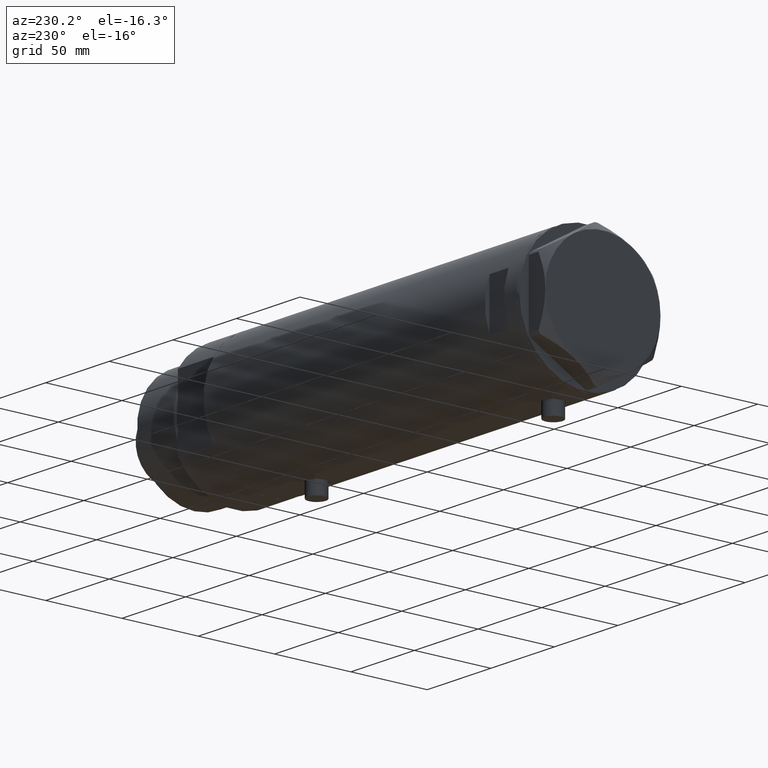
[diagram: clean part render]
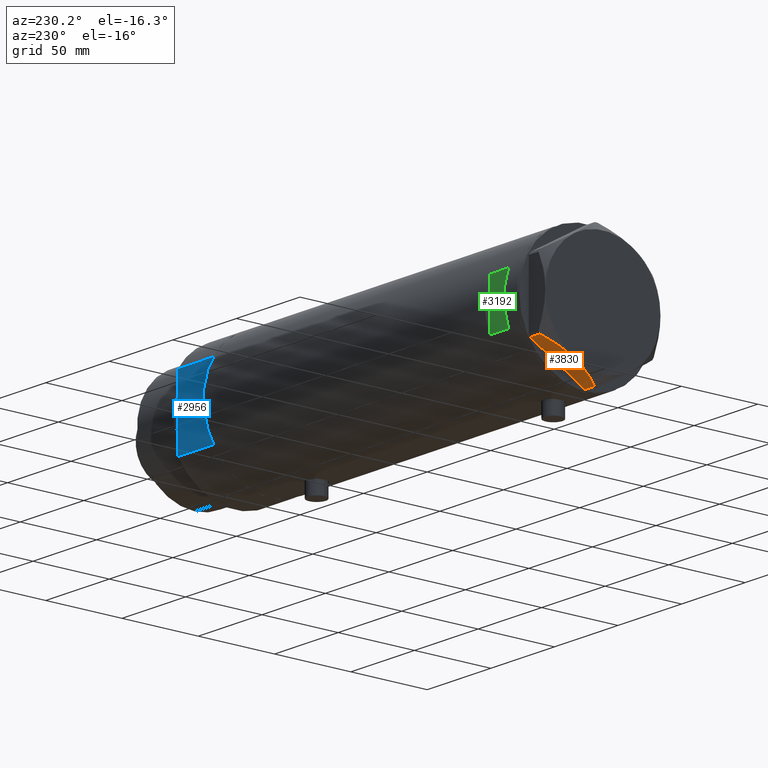
[diagram: same view with three faces highlighted in distinct colors, each labeled with its STEP entity id]
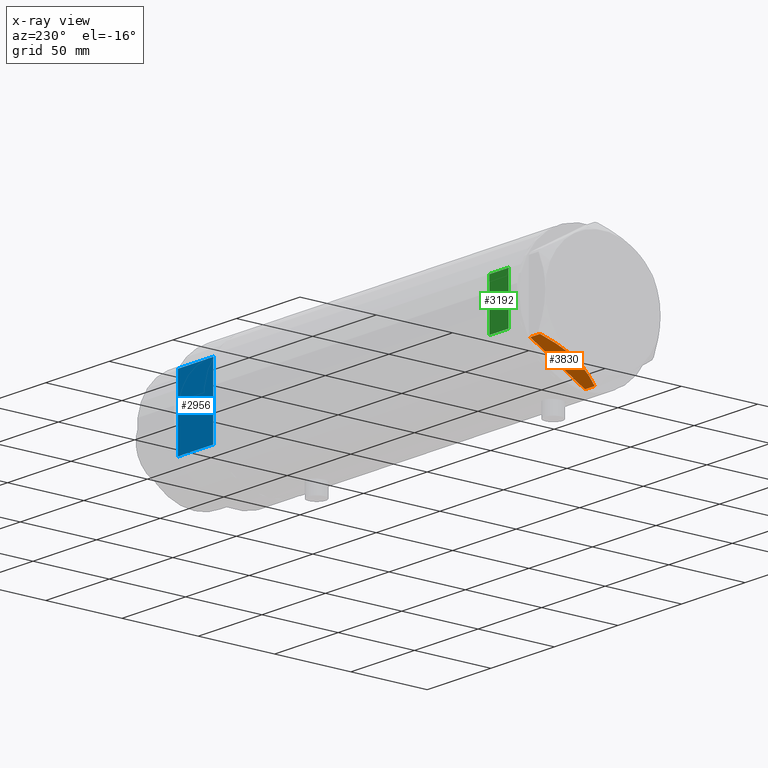
[diagram: x-ray of the same camera — body ghosted, the three highlighted faces saturated]
A machine part, auxiliary view with three faces highlighted in distinct colors.
The next image is the same camera in x-ray (body ghosted, the three faces saturated) — at least one of them is partly hidden behind the body in this view.
Their STEP definitions:

[orange] entity #3830 — the highlighted planar face has unit normal (0, -0.5, 0.866).
#1 = VERTEX_POINT ( 'NONE', #1885 ) ;
#27 = B_SPLINE_CURVE_WITH_KNOTS ( 'NONE', 3,
 ( #899, #2302, #2356, #192, #2380, #2015, #1996, #466, #1311, #3280 ),
 .UNSPECIFIED., .F., .F.,
 ( 4, 2, 2, 2, 4 ),
 ( 0.001231023567492484571, 0.01191187151549577897, 0.01725229548949741912, 0.01992250747649823919, 0.02259271946349905927 ),
 .UNSPECIFIED. ) ;
#192 = CARTESIAN_POINT ( 'NONE',  ( 26.62598697109948631, 28.21742457861299158, 11.98878493998158490 ) ) ;
#466 = CARTESIAN_POINT ( 'NONE',  ( 20.44120046918717293, 31.78821273037242534, 12.96759879420492290 ) ) ;
#571 = ORIENTED_EDGE ( 'NONE', *, *, #2255, .T. ) ;
#643 = ORIENTED_EDGE ( 'NONE', *, *, #4375, .F. ) ;
#652 = VECTOR ( 'NONE', #3900, 1000.000000000000000 ) ;
#899 = CARTESIAN_POINT ( 'NONE',  ( 36.78005154776156616, 22.35497266190829180, 7.709124142616896158 ) ) ;
#1000 = ORIENTED_EDGE ( 'NONE', *, *, #2433, .F. ) ;
#1044 = CARTESIAN_POINT ( 'NONE',  ( 8.949419886524690781, 38.42299534324072141, 11.30742055474510366 ) ) ;
#1070 = LINE ( 'NONE', #1781, #1899 ) ;
#1092 = EDGE_CURVE ( 'NONE', #3863, #1, #3616, .T. ) ;
#1151 = CARTESIAN_POINT ( 'NONE',  ( 0.9699484522385712904, 43.02994532381674020, 13.00000000000000000 ) ) ;
#1311 = CARTESIAN_POINT ( 'NONE',  ( 19.65653997226999294, 32.24123667949002936, 13.00000000000000355 ) ) ;
#1412 = CARTESIAN_POINT ( 'NONE',  ( 8.199247025945881617, 38.85610784623463587, 11.04644118613097170 ) ) ;
#1539 = AXIS2_PLACEMENT_3D ( 'NONE', #4412, #2636, #3929 ) ;
#1681 = CARTESIAN_POINT ( 'NONE',  ( 5.984301592052704066, 40.13490718873321583, 10.17879673963510001 ) ) ;
#1729 = CARTESIAN_POINT ( 'NONE',  ( 11.20965750620489843, 37.11804654508583212, 12.01242981158388723 ) ) ;
#1781 = CARTESIAN_POINT ( 'NONE',  ( 36.78005154776142405, 22.35497266190837706, 13.00000000000000000 ) ) ;
#1885 = CARTESIAN_POINT ( 'NONE',  ( 0.9699484522410141141, 43.02994532381532622, 7.709124142618329678 ) ) ;
#1899 = VECTOR ( 'NONE', #4234, 1000.000000000000000 ) ;
#1996 = CARTESIAN_POINT ( 'NONE',  ( 22.01686507582220642, 30.87850234557911833, 12.83692902789790224 ) ) ;
#2015 = CARTESIAN_POINT ( 'NONE',  ( 22.79667224021352112, 30.42828046930179298, 12.73960743196720458 ) ) ;
#2021 = CARTESIAN_POINT ( 'NONE',  ( 3.804046002726260589, 41.39367834013302883, 9.210778219601426287 ) ) ;
#2119 = CARTESIAN_POINT ( 'NONE',  ( 0.9699484522410141141, 43.02994532381532622, 7.709124142618329678 ) ) ;
#2255 = EDGE_CURVE ( 'NONE', #4390, #3109, #1070, .T. ) ;
#2302 = CARTESIAN_POINT ( 'NONE',  ( 33.96695484073207894, 23.97911480296822262, 9.269459228581801824 ) ) ;
#2307 = ORIENTED_EDGE ( 'NONE', *, *, #3776, .T. ) ;
#2326 = LINE ( 'NONE', #3709, #2804 ) ;
#2356 = CARTESIAN_POINT ( 'NONE',  ( 31.09047021924040877, 25.63985397350625206, 10.58681170757598800 ) ) ;
#2380 = CARTESIAN_POINT ( 'NONE',  ( 25.11263918036255305, 29.09115633297248849, 12.35956205105863859 ) ) ;
#2389 = CARTESIAN_POINT ( 'NONE',  ( 15.78316139395979611, 34.47753284435075471, 12.87183830165163556 ) ) ;
#2402 = ORIENTED_EDGE ( 'NONE', *, *, #1092, .T. ) ;
#2433 = EDGE_CURVE ( 'NONE', #4390, #3313, #27, .T. ) ;
#2464 = CARTESIAN_POINT ( 'NONE',  ( 6.717640657182761821, 39.71151368207312515, 10.48240969891332064 ) ) ;
#2535 = PLANE ( 'NONE',  #1539 ) ;
#2636 = DIRECTION ( 'NONE',  ( -0.5000000000000000000, -0.8660254037844387076, 0.000000000000000000 ) ) ;
#2699 = CARTESIAN_POINT ( 'NONE',  ( 36.78005154776142405, 22.35497266190837706, 0.000000000000000000 ) ) ;
#2804 = VECTOR ( 'NONE', #2880, 1000.000000000000227 ) ;
#2880 = DIRECTION ( 'NONE',  ( -0.8660254037844385966, 0.5000000000000000000, 0.000000000000000000 ) ) ;
#3025 = FACE_OUTER_BOUND ( 'NONE', #4317, .T. ) ;
#3086 = CARTESIAN_POINT ( 'NONE',  ( 18.87500000000000000, 32.69245899286255508, 13.00000000000000000 ) ) ;
#3109 = VERTEX_POINT ( 'NONE', #2699 ) ;
#3239 = CARTESIAN_POINT ( 'NONE',  ( 0.9699484522385850571, 43.02994532381674020, 0.000000000000000000 ) ) ;
#3263 = B_SPLINE_CURVE_WITH_KNOTS ( 'NONE', 3,
 ( #3829, #3465, #2389, #4522, #1729, #1044, #1412, #2464, #1681, #2021, #3785, #2119 ),
 .UNSPECIFIED., .F., .F.,
 ( 4, 2, 2, 2, 2, 4 ),
 ( 0.02259271946349905927, 0.02789559809390696268, 0.03319847672431486263, 0.03584991603951881434, 0.03850135535472275911, 0.04380423398513066252 ),
 .UNSPECIFIED. ) ;
#3280 = CARTESIAN_POINT ( 'NONE',  ( 18.87500000000000000, 32.69245899286255508, 13.00000000000000000 ) ) ;
#3313 = VERTEX_POINT ( 'NONE', #3086 ) ;
#3465 = CARTESIAN_POINT ( 'NONE',  ( 17.32290914057161046, 33.58855906836029703, 12.99999999999999822 ) ) ;
#3616 = LINE ( 'NONE', #1151, #652 ) ;
#3709 = CARTESIAN_POINT ( 'NONE',  ( 37.75000000000000000, 21.79497266190837124, 0.000000000000000000 ) ) ;
#3776 = EDGE_CURVE ( 'NONE', #3109, #3863, #2326, .T. ) ;
#3785 = CARTESIAN_POINT ( 'NONE',  ( 2.376799045725944914, 42.21769975495722349, 8.489459328479338041 ) ) ;
#3829 = CARTESIAN_POINT ( 'NONE',  ( 18.87500000000000000, 32.69245899286255508, 13.00000000000000000 ) ) ;
#3830 = ADVANCED_FACE ( 'NONE', ( #3025 ), #2535, .F. ) ;
#3863 = VERTEX_POINT ( 'NONE', #3239 ) ;
#3900 = DIRECTION ( 'NONE',  ( 0.000000000000000000, 0.000000000000000000, 1.000000000000000000 ) ) ;
#3929 = DIRECTION ( 'NONE',  ( 0.8660254037844385966, -0.4999999999999999445, 0.000000000000000000 ) ) ;
#4160 = CARTESIAN_POINT ( 'NONE',  ( 36.78005154776156616, 22.35497266190829180, 7.709124142616896158 ) ) ;
#4234 = DIRECTION ( 'NONE',  ( 0.000000000000000000, 0.000000000000000000, -1.000000000000000000 ) ) ;
#4317 = EDGE_LOOP ( 'NONE', ( #1000, #571, #2307, #2402, #643 ) ) ;
#4375 = EDGE_CURVE ( 'NONE', #3313, #1, #3263, .T. ) ;
#4390 = VERTEX_POINT ( 'NONE', #4160 ) ;
#4412 = CARTESIAN_POINT ( 'NONE',  ( 37.75000000000000000, 21.79497266190837124, 13.00000000000000000 ) ) ;
#4522 = CARTESIAN_POINT ( 'NONE',  ( 12.72654504259190666, 36.24227111762240128, 12.37795492145974308 ) ) ;

[blue] entity #2956 — the highlighted planar face has unit normal (0, -1, -0).
#24 = DIRECTION ( 'NONE',  ( -0.000000000000000000, -0.000000000000000000, 1.000000000000000000 ) ) ;
#25 = EDGE_CURVE ( 'NONE', #4045, #478, #204, .T. ) ;
#35 = PLANE ( 'NONE',  #1903 ) ;
#36 = ORIENTED_EDGE ( 'NONE', *, *, #25, .T. ) ;
#39 = ORIENTED_EDGE ( 'NONE', *, *, #227, .F. ) ;
#204 = LINE ( 'NONE', #3035, #1011 ) ;
#227 = EDGE_CURVE ( 'NONE', #2398, #478, #1514, .T. ) ;
#252 = DIRECTION ( 'NONE',  ( 1.000000000000000000, 0.000000000000000000, 0.000000000000000000 ) ) ;
#380 = CARTESIAN_POINT ( 'NONE',  ( -23.01629857296780557, 37.50000000000000000, 27.89999999999999858 ) ) ;
#390 = CARTESIAN_POINT ( 'NONE',  ( -23.01629857296780557, 37.50000000000000000, 0.000000000000000000 ) ) ;
#438 = DIRECTION ( 'NONE',  ( 1.000000000000000000, 0.000000000000000000, 0.000000000000000000 ) ) ;
#451 = EDGE_CURVE ( 'NONE', #1082, #4045, #2181, .T. ) ;
#478 = VERTEX_POINT ( 'NONE', #1222 ) ;
#489 = VECTOR ( 'NONE', #438, 1000.000000000000000 ) ;
#798 = DIRECTION ( 'NONE',  ( 0.000000000000000000, -0.000000000000000000, -1.000000000000000000 ) ) ;
#819 = VERTEX_POINT ( 'NONE', #4043 ) ;
#1011 = VECTOR ( 'NONE', #1984, 1000.000000000000000 ) ;
#1058 = DIRECTION ( 'NONE',  ( 1.000000000000000000, 0.000000000000000000, 0.000000000000000000 ) ) ;
#1082 = VERTEX_POINT ( 'NONE', #380 ) ;
#1222 = CARTESIAN_POINT ( 'NONE',  ( 23.01629857296780557, 37.50000000000000000, 27.89999999999999858 ) ) ;
#1514 = LINE ( 'NONE', #4245, #4380 ) ;
#1519 = CARTESIAN_POINT ( 'NONE',  ( -23.01629857296780557, 37.50000000000000000, 0.000000000000000000 ) ) ;
#1648 = ORIENTED_EDGE ( 'NONE', *, *, #2157, .F. ) ;
#1786 = DIRECTION ( 'NONE',  ( 0.000000000000000000, -1.000000000000000000, 0.000000000000000000 ) ) ;
#1792 = LINE ( 'NONE', #1519, #2278 ) ;
#1841 = ORIENTED_EDGE ( 'NONE', *, *, #451, .T. ) ;
#1859 = CARTESIAN_POINT ( 'NONE',  ( -23.01629857296780557, 37.50000000000000000, 0.000000000000000000 ) ) ;
#1903 = AXIS2_PLACEMENT_3D ( 'NONE', #390, #1786, #798 ) ;
#1984 = DIRECTION ( 'NONE',  ( 1.000000000000000000, 0.000000000000000000, 0.000000000000000000 ) ) ;
#2073 = CARTESIAN_POINT ( 'NONE',  ( -23.01629857296780557, 37.50000000000000000, 0.000000000000000000 ) ) ;
#2157 = EDGE_CURVE ( 'NONE', #819, #4105, #4527, .T. ) ;
#2181 = LINE ( 'NONE', #3590, #489 ) ;
#2185 = EDGE_LOOP ( 'NONE', ( #1841, #36, #39, #4330, #1648, #3050, #2960 ) ) ;
#2278 = VECTOR ( 'NONE', #24, 1000.000000000000000 ) ;
#2350 = CARTESIAN_POINT ( 'NONE',  ( -23.01629857296780557, 37.50000000000000000, 0.000000000000000000 ) ) ;
#2398 = VERTEX_POINT ( 'NONE', #2668 ) ;
#2589 = DIRECTION ( 'NONE',  ( -0.000000000000000000, -0.000000000000000000, 1.000000000000000000 ) ) ;
#2632 = CARTESIAN_POINT ( 'NONE',  ( 0.000000000000000000, 37.50000000000000000, 27.89999999999999858 ) ) ;
#2668 = CARTESIAN_POINT ( 'NONE',  ( 23.01629857296780557, 37.50000000000000000, 0.000000000000000000 ) ) ;
#2731 = EDGE_CURVE ( 'NONE', #4476, #819, #3044, .T. ) ;
#2821 = LINE ( 'NONE', #4200, #3299 ) ;
#2914 = EDGE_CURVE ( 'NONE', #4105, #2398, #2821, .T. ) ;
#2956 = ADVANCED_FACE ( 'NONE', ( #4285 ), #35, .F. ) ;
#2960 = ORIENTED_EDGE ( 'NONE', *, *, #4507, .T. ) ;
#3035 = CARTESIAN_POINT ( 'NONE',  ( -23.01629857296780557, 37.50000000000000000, 27.89999999999999858 ) ) ;
#3044 = LINE ( 'NONE', #2350, #4100 ) ;
#3050 = ORIENTED_EDGE ( 'NONE', *, *, #2731, .F. ) ;
#3299 = VECTOR ( 'NONE', #1058, 1000.000000000000000 ) ;
#3590 = CARTESIAN_POINT ( 'NONE',  ( -23.01629857296780557, 37.50000000000000000, 27.89999999999999858 ) ) ;
#3775 = DIRECTION ( 'NONE',  ( 1.000000000000000000, 0.000000000000000000, 0.000000000000000000 ) ) ;
#3820 = VECTOR ( 'NONE', #252, 1000.000000000000000 ) ;
#3976 = CARTESIAN_POINT ( 'NONE',  ( 13.91941090707505957, 37.50000000000000000, 0.000000000000000000 ) ) ;
#4043 = CARTESIAN_POINT ( 'NONE',  ( -13.91941090707505957, 37.50000000000000000, 0.000000000000000000 ) ) ;
#4045 = VERTEX_POINT ( 'NONE', #2632 ) ;
#4100 = VECTOR ( 'NONE', #3775, 1000.000000000000000 ) ;
#4105 = VERTEX_POINT ( 'NONE', #3976 ) ;
#4200 = CARTESIAN_POINT ( 'NONE',  ( -23.01629857296780557, 37.50000000000000000, 0.000000000000000000 ) ) ;
#4245 = CARTESIAN_POINT ( 'NONE',  ( 23.01629857296780557, 37.50000000000000000, 0.000000000000000000 ) ) ;
#4285 = FACE_OUTER_BOUND ( 'NONE', #2185, .T. ) ;
#4330 = ORIENTED_EDGE ( 'NONE', *, *, #2914, .F. ) ;
#4380 = VECTOR ( 'NONE', #2589, 1000.000000000000000 ) ;
#4476 = VERTEX_POINT ( 'NONE', #1859 ) ;
#4507 = EDGE_CURVE ( 'NONE', #4476, #1082, #1792, .T. ) ;
#4527 = LINE ( 'NONE', #2073, #3820 ) ;

[green] entity #3192 — the highlighted planar face has unit normal (0, -1, -0).
#96 = EDGE_CURVE ( 'NONE', #2968, #3204, #3053, .T. ) ;
#121 = VECTOR ( 'NONE', #3089, 1000.000000000000000 ) ;
#128 = CARTESIAN_POINT ( 'NONE',  ( -44.00000000000000000, 40.99999999999999289, 98.19999999999998863 ) ) ;
#156 = ORIENTED_EDGE ( 'NONE', *, *, #96, .T. ) ;
#190 = VECTOR ( 'NONE', #3449, 1000.000000000000000 ) ;
#565 = EDGE_LOOP ( 'NONE', ( #2177, #905, #3297, #156 ) ) ;
#605 = EDGE_CURVE ( 'NONE', #1794, #1107, #852, .T. ) ;
#634 = CARTESIAN_POINT ( 'NONE',  ( 15.96871942267131672, 40.99999999999999289, -123.2000000000000028 ) ) ;
#851 = EDGE_CURVE ( 'NONE', #3204, #1107, #3809, .T. ) ;
#852 = LINE ( 'NONE', #128, #2870 ) ;
#905 = ORIENTED_EDGE ( 'NONE', *, *, #605, .F. ) ;
#976 = DIRECTION ( 'NONE',  ( 0.000000000000000000, -1.000000000000000000, -0.000000000000000000 ) ) ;
#1107 = VERTEX_POINT ( 'NONE', #2945 ) ;
#1384 = CARTESIAN_POINT ( 'NONE',  ( -44.00000000000000000, 40.99999999999999289, 113.1999999999999886 ) ) ;
#1545 = DIRECTION ( 'NONE',  ( 1.000000000000000000, -0.000000000000000000, -0.000000000000000000 ) ) ;
#1640 = CARTESIAN_POINT ( 'NONE',  ( 15.96871942267132027, 40.99999999999999289, 113.1999999999999886 ) ) ;
#1728 = PLANE ( 'NONE',  #2503 ) ;
#1794 = VERTEX_POINT ( 'NONE', #3950 ) ;
#2022 = CARTESIAN_POINT ( 'NONE',  ( -44.00000000000000000, 40.99999999999999289, 113.1999999999999886 ) ) ;
#2062 = LINE ( 'NONE', #3479, #121 ) ;
#2177 = ORIENTED_EDGE ( 'NONE', *, *, #851, .T. ) ;
#2503 = AXIS2_PLACEMENT_3D ( 'NONE', #1384, #976, #2761 ) ;
#2761 = DIRECTION ( 'NONE',  ( 0.000000000000000000, 0.000000000000000000, -1.000000000000000000 ) ) ;
#2868 = EDGE_CURVE ( 'NONE', #1794, #2968, #2062, .T. ) ;
#2870 = VECTOR ( 'NONE', #1545, 1000.000000000000000 ) ;
#2945 = CARTESIAN_POINT ( 'NONE',  ( 15.96871942267132027, 40.99999999999999289, 98.19999999999998863 ) ) ;
#2968 = VERTEX_POINT ( 'NONE', #3146 ) ;
#3053 = LINE ( 'NONE', #2022, #3733 ) ;
#3089 = DIRECTION ( 'NONE',  ( 0.000000000000000000, 0.000000000000000000, 1.000000000000000000 ) ) ;
#3146 = CARTESIAN_POINT ( 'NONE',  ( -15.96871942267132027, 40.99999999999999289, 113.1999999999999886 ) ) ;
#3192 = ADVANCED_FACE ( 'NONE', ( #3849 ), #1728, .F. ) ;
#3204 = VERTEX_POINT ( 'NONE', #1640 ) ;
#3297 = ORIENTED_EDGE ( 'NONE', *, *, #2868, .T. ) ;
#3449 = DIRECTION ( 'NONE',  ( -0.000000000000000000, -0.000000000000000000, -1.000000000000000000 ) ) ;
#3479 = CARTESIAN_POINT ( 'NONE',  ( -15.96871942267131672, 40.99999999999999289, -123.2000000000000028 ) ) ;
#3733 = VECTOR ( 'NONE', #4103, 1000.000000000000000 ) ;
#3809 = LINE ( 'NONE', #634, #190 ) ;
#3849 = FACE_OUTER_BOUND ( 'NONE', #565, .T. ) ;
#3950 = CARTESIAN_POINT ( 'NONE',  ( -15.96871942267131672, 40.99999999999999289, 98.19999999999998863 ) ) ;
#4103 = DIRECTION ( 'NONE',  ( 1.000000000000000000, -0.000000000000000000, -0.000000000000000000 ) ) ;